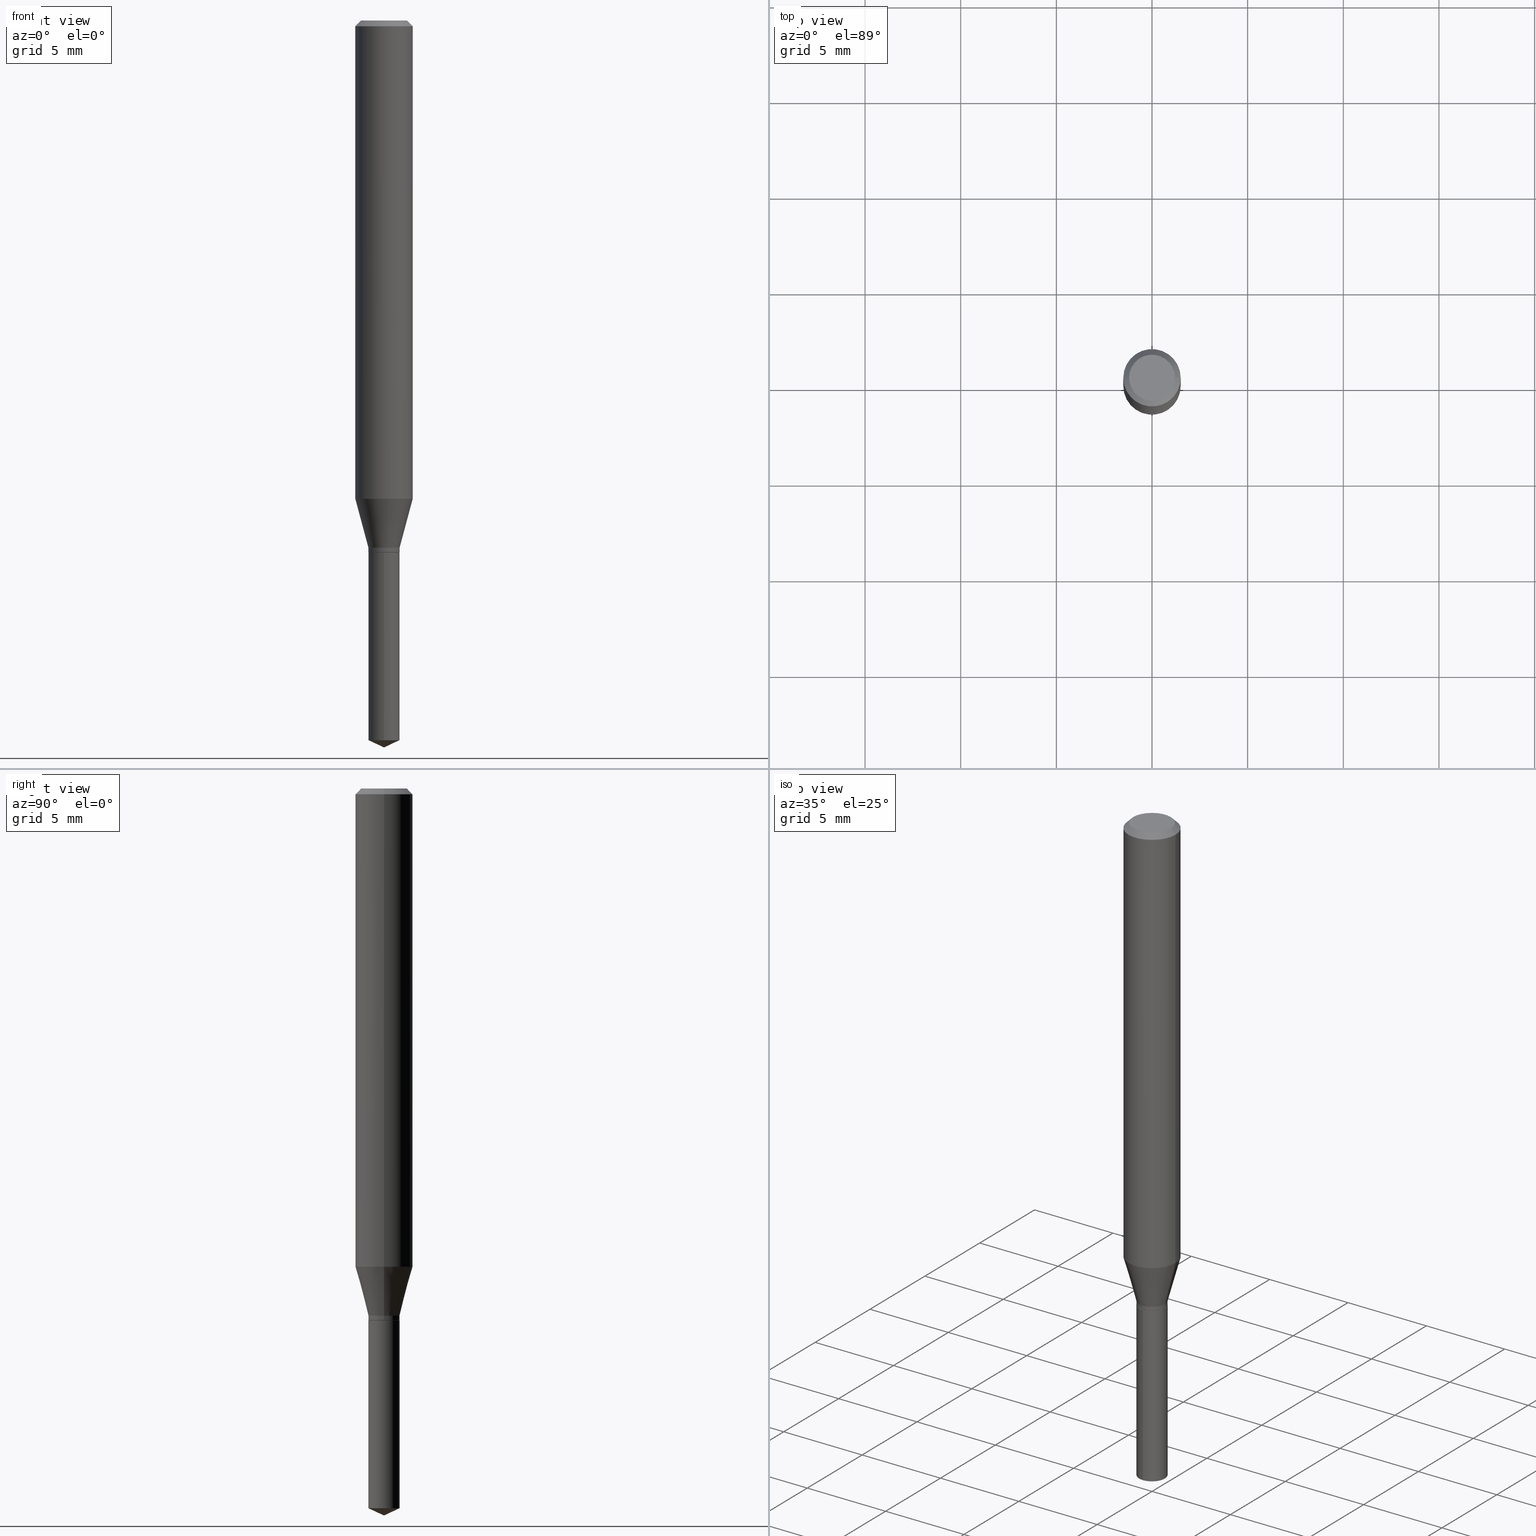
[diagram: canonical four-view strip — front | top / right | iso, engineering-drawing reading convention]
A machine part, canonical four-view strip (front | top / right | iso — engineering-drawing reading convention). The complete STEP part file that produces these views, byte-faithful:
ISO-10303-21;
HEADER;
FILE_DESCRIPTION (( 'STEP AP203' ),
    '1' );
FILE_NAME ('07556.STEP',
    '2024-04-23T22:54:17',
    ( '' ),
    ( '' ),
    'SwSTEP 2.0',
    'SolidWorks 2023',
    '' );
FILE_SCHEMA (( 'CONFIG_CONTROL_DESIGN' ));
ENDSEC;

DATA;
#1 = VERTEX_POINT ( 'NONE', #342 ) ;
#2 = CC_DESIGN_PERSON_AND_ORGANIZATION_ASSIGNMENT ( #412, #376, ( #116 ) ) ;
#3 = EDGE_LOOP ( 'NONE', ( #309, #75, #5 ) ) ;
#4 = CLOSED_SHELL ( 'NONE', ( #286, #91, #335, #417, #340 ) ) ;
#5 = ORIENTED_EDGE ( 'NONE', *, *, #470, .F. ) ;
#6 = CARTESIAN_POINT ( 'NONE',  ( -0.03209999999999998965, -3.575710126423672121E-15, -1.093999999999999861 ) ) ;
#7 = ORIENTED_EDGE ( 'NONE', *, *, #446, .F. ) ;
#8 = ORIENTED_EDGE ( 'NONE', *, *, #246, .F. ) ;
#9 = EDGE_CURVE ( 'NONE', #115, #1, #235, .T. ) ;
#10 = CARTESIAN_POINT ( 'NONE',  ( 3.658668015054778287E-29, -5.223602213574301462E-15, -1.496099999999999985 ) ) ;
#11 = DIRECTION ( 'NONE',  ( -2.445468806185136597E-29, 3.491481338843145583E-15, 1.000000000000000000 ) ) ;
#12 =( CONVERSION_BASED_UNIT ( 'INCH', #88 ) LENGTH_UNIT ( ) NAMED_UNIT ( #17 ) );
#13 = ORIENTED_EDGE ( 'NONE', *, *, #408, .F. ) ;
#14 = DIRECTION ( 'NONE',  ( -2.445468806185136877E-29, 3.491481338843145188E-15, 1.000000000000000000 ) ) ;
#15 = EDGE_CURVE ( 'NONE', #275, #128, #193, .T. ) ;
#16 = ORIENTED_EDGE ( 'NONE', *, *, #224, .T. ) ;
#17 = DIMENSIONAL_EXPONENTS ( 1.000000000000000000, 0.000000000000000000, 0.000000000000000000, 0.000000000000000000, 0.000000000000000000, 0.000000000000000000, 0.000000000000000000 ) ;
#18 = DIRECTION ( 'NONE',  ( -2.445468806185136597E-29, 3.491481338843145583E-15, 1.000000000000000000 ) ) ;
#19 = CALENDAR_DATE ( 2024, 23, 4 ) ;
#20 = CYLINDRICAL_SURFACE ( 'NONE', #142, 0.05905000000000006077 ) ;
#21 = EDGE_CURVE ( 'NONE', #163, #275, #168, .T. ) ;
#22 = UNCERTAINTY_MEASURE_WITH_UNIT (LENGTH_MEASURE( 1.000000000000000082E-05 ), #12, 'distance_accuracy_value', 'NONE');
#23 = VECTOR ( 'NONE', #431, 39.37007874015748854 ) ;
#24 = DIRECTION ( 'NONE',  ( 2.438088387897960049E-29, -3.491481338843145188E-15, -1.000000000000000000 ) ) ;
#25 = MANIFOLD_SOLID_BREP ( 'Body-Move/Copy2[2]', #302 ) ;
#26 = DIRECTION ( 'NONE',  ( 1.000000000000000000, -6.982962677686266711E-15, 4.876176775795935793E-29 ) ) ;
#27 = ORIENTED_EDGE ( 'NONE', *, *, #470, .T. ) ;
#28 = CARTESIAN_POINT ( 'NONE',  ( 2.676565608369631794E-29, -3.821426325363822773E-15, -1.094499999999999806 ) ) ;
#29 = ORIENTED_EDGE ( 'NONE', *, *, #370, .T. ) ;
#30 = EDGE_LOOP ( 'NONE', ( #272, #233, #410, #280 ) ) ;
#31 = AXIS2_PLACEMENT_3D ( 'NONE', #288, #11, #203 ) ;
#32 = LOCAL_TIME ( 18, 54, 17.00000000000000000, #216 ) ;
#33 = PLANE ( 'NONE',  #452 ) ;
#34 = ORIENTED_EDGE ( 'NONE', *, *, #455, .T. ) ;
#35 = ORIENTED_EDGE ( 'NONE', *, *, #321, .F. ) ;
#36 = DIRECTION ( 'NONE',  ( 2.445468806185136597E-29, -3.491481338843145583E-15, -1.000000000000000000 ) ) ;
#37 = ORIENTED_EDGE ( 'NONE', *, *, #388, .F. ) ;
#38 = DIRECTION ( 'NONE',  ( 1.000000000000000000, -6.982962677686265133E-15, 0.000000000000000000 ) ) ;
#39 = DIRECTION ( 'NONE',  ( -2.445468806185136597E-29, 3.491481338843145583E-15, 1.000000000000000000 ) ) ;
#40 = VECTOR ( 'NONE', #160, 39.37007874015748854 ) ;
#41 = CARTESIAN_POINT ( 'NONE',  ( 2.653089107830254266E-29, -3.787908104510928327E-15, -1.084899999999999975 ) ) ;
#42 = EDGE_CURVE ( 'NONE', #448, #166, #296, .T. ) ;
#43 = DIRECTION ( 'NONE',  ( -6.982962677686265133E-15, -1.000000000000000000, 4.255214943402279650E-15 ) ) ;
#44 = ORIENTED_EDGE ( 'NONE', *, *, #21, .T. ) ;
#45 =( GEOMETRIC_REPRESENTATION_CONTEXT ( 3 ) GLOBAL_UNCERTAINTY_ASSIGNED_CONTEXT ( ( #22 ) ) GLOBAL_UNIT_ASSIGNED_CONTEXT ( ( #12, #250, #167 ) ) REPRESENTATION_CONTEXT ( 'NONE', 'WORKASPACE' ) );
#46 = DIRECTION ( 'NONE',  ( -2.445468806185136597E-29, 3.491481338843145583E-15, 1.000000000000000000 ) ) ;
#47 = CC_DESIGN_DATE_AND_TIME_ASSIGNMENT ( #242, #441, ( #307 ) ) ;
#48 = CARTESIAN_POINT ( 'NONE',  ( -0.04724000000000000421, 3.504923541997677355E-16, -3.380025165670481712E-19 ) ) ;
#49 = APPROVAL_DATE_TIME ( #476, #100 ) ;
#50 = ORIENTED_EDGE ( 'NONE', *, *, #144, .T. ) ;
#51 = DIRECTION ( 'NONE',  ( 1.000000000000000000, -6.982962677686265133E-15, 0.000000000000000000 ) ) ;
#52 = PRODUCT ( '07556', '07556', '', ( #445 ) ) ;
#53 = APPROVAL_ROLE ( '' ) ;
#54 = DIRECTION ( 'NONE',  ( -6.982962677686265133E-15, -1.000000000000000000, 4.255214943402279650E-15 ) ) ;
#55 = CARTESIAN_POINT ( 'NONE',  ( 0.05905000000000006077, -4.123439461173744764E-16, 2.879382386107503023E-30 ) ) ;
#56 = DIRECTION ( 'NONE',  ( -2.445470214571802116E-29, 3.491479321953280158E-15, 1.000000000000000000 ) ) ;
#57 = AXIS2_PLACEMENT_3D ( 'NONE', #293, #435, #255 ) ;
#58 = ADVANCED_FACE ( 'NONE', ( #294 ), #325, .T. ) ;
#59 = CARTESIAN_POINT ( 'NONE',  ( 2.280842181790284230E-16, 0.03209999999999617326, -1.094500000000000028 ) ) ;
#60 = FACE_OUTER_BOUND ( 'NONE', #313, .T. ) ;
#61 = CARTESIAN_POINT ( 'NONE',  ( -0.03159999999999999615, -3.596894820863631388E-15, -1.094500000000000028 ) ) ;
#62 = DIRECTION ( 'NONE',  ( 0.000000000000000000, 0.000000000000000000, 1.000000000000000000 ) ) ;
#63 = ORIENTED_EDGE ( 'NONE', *, *, #364, .T. ) ;
#64 = EDGE_CURVE ( 'NONE', #1, #115, #392, .T. ) ;
#65 = CARTESIAN_POINT ( 'NONE',  ( -2.241531019537023721E-16, -0.03210000000000381992, -1.094499999999999806 ) ) ;
#66 = VECTOR ( 'NONE', #378, 39.37007874015748854 ) ;
#67 = ORIENTED_EDGE ( 'NONE', *, *, #321, .T. ) ;
#68 = AXIS2_PLACEMENT_3D ( 'NONE', #320, #124, #118 ) ;
#69 = CYLINDRICAL_SURFACE ( 'NONE', #264, 0.03209999999999999659 ) ;
#70 = AXIS2_PLACEMENT_3D ( 'NONE', #451, #237, #38 ) ;
#71 = EDGE_CURVE ( 'NONE', #130, #115, #79, .T. ) ;
#72 = EDGE_LOOP ( 'NONE', ( #304, #108, #306, #67 ) ) ;
#73 = LINE ( 'NONE', #10, #40 ) ;
#74 = PERSON_AND_ORGANIZATION ( #459, #443 ) ;
#75 = ORIENTED_EDGE ( 'NONE', *, *, #446, .T. ) ;
#76 = DIRECTION ( 'NONE',  ( -2.445468806185136597E-29, 3.491481338843145583E-15, 1.000000000000000000 ) ) ;
#77 = DATE_AND_TIME ( #419, #201 ) ;
#78 = VECTOR ( 'NONE', #129, 39.37007874015748143 ) ;
#79 = LINE ( 'NONE', #145, #66 ) ;
#80 = FACE_OUTER_BOUND ( 'NONE', #3, .T. ) ;
#81 = ADVANCED_FACE ( 'NONE', ( #274 ), #161, .T. ) ;
#82 = EDGE_LOOP ( 'NONE', ( #123, #359, #13, #134 ) ) ;
#83 = CALENDAR_DATE ( 2024, 23, 4 ) ;
#84 = AXIS2_PLACEMENT_3D ( 'NONE', #481, #18, #173 ) ;
#85 = VECTOR ( 'NONE', #14, 39.37007874015748143 ) ;
#86 = AXIS2_PLACEMENT_3D ( 'NONE', #41, #39, #267 ) ;
#87 = LINE ( 'NONE', #468, #442 ) ;
#88 = LENGTH_MEASURE_WITH_UNIT ( LENGTH_MEASURE( 0.02539999999999999897 ), #164 );
#89 = DIRECTION ( 'NONE',  ( -6.982962677686265133E-15, -1.000000000000000000, 4.255214943402279650E-15 ) ) ;
#90 = CARTESIAN_POINT ( 'NONE',  ( 3.658664905062460986E-29, -5.223606628546217219E-15, -1.496099999999999985 ) ) ;
#91 = ADVANCED_FACE ( 'NONE', ( #80 ), #338, .T. ) ;
#92 = CARTESIAN_POINT ( 'NONE',  ( 2.653089107830254266E-29, -3.787908104510928327E-15, -1.084899999999999975 ) ) ;
#93 = LINE ( 'NONE', #214, #147 ) ;
#94 = DIRECTION ( 'NONE',  ( -2.445468806185136597E-29, 3.491481338843145583E-15, 1.000000000000000000 ) ) ;
#95 = ORIENTED_EDGE ( 'NONE', *, *, #246, .T. ) ;
#96 = CARTESIAN_POINT ( 'NONE',  ( 2.888098660104664204E-31, -4.123439461173780263E-17, -0.01181000000000007218 ) ) ;
#97 = VECTOR ( 'NONE', #248, 39.37007874015748143 ) ;
#98 = VERTEX_POINT ( 'NONE', #355 ) ;
#99 = DIRECTION ( 'NONE',  ( -1.000000000000000000, 6.982962677686265922E-15, -4.876176775795935793E-29 ) ) ;
#100 = APPROVAL ( #197, 'UNSPECIFIED' ) ;
#101 = DIRECTION ( 'NONE',  ( 2.445470214571801836E-29, -3.491479321953280158E-15, -1.000000000000000000 ) ) ;
#102 = PERSON_AND_ORGANIZATION ( #459, #443 ) ;
#103 = EDGE_LOOP ( 'NONE', ( #429, #154 ) ) ;
#104 = VERTEX_POINT ( 'NONE', #315 ) ;
#105 = ADVANCED_FACE ( 'NONE', ( #423 ), #33, .F. ) ;
#106 = ORIENTED_EDGE ( 'NONE', *, *, #487, .T. ) ;
#107 = DIRECTION ( 'NONE',  ( 1.000000000000000000, -6.982962677686266711E-15, 4.876185090822587894E-29 ) ) ;
#108 = ORIENTED_EDGE ( 'NONE', *, *, #425, .F. ) ;
#109 = EDGE_LOOP ( 'NONE', ( #416, #322, #50, #479 ) ) ;
#110 = DIRECTION ( 'NONE',  ( 1.000000000000000000, -6.982962677686266711E-15, 0.000000000000000000 ) ) ;
#111 = COORDINATED_UNIVERSAL_TIME_OFFSET ( 5, 0, .BEHIND. ) ;
#112 = APPLICATION_CONTEXT ( 'configuration controlled 3d designs of mechanical parts and assemblies' ) ;
#113 = EDGE_LOOP ( 'NONE', ( #27, #63, #291, #460 ) ) ;
#114 = DIRECTION ( 'NONE',  ( -2.445470214571802116E-29, 3.491479321953280158E-15, 1.000000000000000000 ) ) ;
#115 = VERTEX_POINT ( 'NONE', #463 ) ;
#116 = PRODUCT_DEFINITION_FORMATION_WITH_SPECIFIED_SOURCE ( 'ANY', '', #52, .NOT_KNOWN. ) ;
#117 = PERSON_AND_ORGANIZATION ( #459, #443 ) ;
#118 = DIRECTION ( 'NONE',  ( -6.982962677686265133E-15, -1.000000000000000000, 0.000000000000000000 ) ) ;
#119 = ORIENTED_EDGE ( 'NONE', *, *, #349, .F. ) ;
#120 = CARTESIAN_POINT ( 'NONE',  ( -2.241531019537023721E-16, -0.03210000000000381992, -1.094499999999999806 ) ) ;
#121 = CC_DESIGN_SECURITY_CLASSIFICATION ( #225, ( #116 ) ) ;
#122 = EDGE_CURVE ( 'NONE', #166, #414, #87, .T. ) ;
#123 = ORIENTED_EDGE ( 'NONE', *, *, #388, .T. ) ;
#124 = DIRECTION ( 'NONE',  ( -2.445470214571802116E-29, 3.491479321953280158E-15, 1.000000000000000000 ) ) ;
#125 = AXIS2_PLACEMENT_3D ( 'NONE', #456, #151, #110 ) ;
#126 = AXIS2_PLACEMENT_3D ( 'NONE', #175, #215, #51 ) ;
#127 = CIRCLE ( 'NONE', #297, 0.03159999999999999615 ) ;
#128 = VERTEX_POINT ( 'NONE', #120 ) ;
#129 = DIRECTION ( 'NONE',  ( -2.445468806185136877E-29, 3.491481338843145188E-15, 1.000000000000000000 ) ) ;
#130 = VERTEX_POINT ( 'NONE', #357 ) ;
#131 = EDGE_CURVE ( 'NONE', #98, #130, #243, .T. ) ;
#132 = DIRECTION ( 'NONE',  ( -2.445468806185136597E-29, 3.491481338843145583E-15, 1.000000000000000000 ) ) ;
#133 = CARTESIAN_POINT ( 'NONE',  ( -0.03159999999999999615, -3.594245593689520187E-15, -1.094500000000000028 ) ) ;
#134 = ORIENTED_EDGE ( 'NONE', *, *, #169, .F. ) ;
#135 = CARTESIAN_POINT ( 'NONE',  ( 2.676565608369631794E-29, -3.821426325363822773E-15, -1.094499999999999806 ) ) ;
#136 = LINE ( 'NONE', #172, #97 ) ;
#137 = AXIS2_PLACEMENT_3D ( 'NONE', #312, #238, #381 ) ;
#138 = DIRECTION ( 'NONE',  ( -2.445468806185136597E-29, 3.491481338843145583E-15, 1.000000000000000000 ) ) ;
#139 = EDGE_CURVE ( 'NONE', #448, #426, #319, .T. ) ;
#140 = CARTESIAN_POINT ( 'NONE',  ( 0.000000000000000000, 0.000000000000000000, 0.000000000000000000 ) ) ;
#141 = DIRECTION ( 'NONE',  ( 1.000000000000000000, -6.982962677686266711E-15, 4.876176775795935793E-29 ) ) ;
#142 = AXIS2_PLACEMENT_3D ( 'NONE', #221, #474, #26 ) ;
#143 = AXIS2_PLACEMENT_3D ( 'NONE', #28, #101, #444 ) ;
#144 = EDGE_CURVE ( 'NONE', #426, #414, #220, .T. ) ;
#145 = CARTESIAN_POINT ( 'NONE',  ( 0.03209999999999999659, -4.012061206464657274E-15, -1.084899999999999975 ) ) ;
#146 = EDGE_LOOP ( 'NONE', ( #324, #353, #229, #473 ) ) ;
#147 = VECTOR ( 'NONE', #258, 39.37007874015748854 ) ;
#148 = AXIS2_PLACEMENT_3D ( 'NONE', #217, #138, #252 ) ;
#149 = EDGE_LOOP ( 'NONE', ( #223, #276, #439, #192 ) ) ;
#150 = VECTOR ( 'NONE', #323, 39.37007874015748143 ) ;
#151 = DIRECTION ( 'NONE',  ( -2.445468806185136597E-29, 3.491481338843145583E-15, 1.000000000000000000 ) ) ;
#152 = PERSON_AND_ORGANIZATION ( #459, #443 ) ;
#153 = CC_DESIGN_PERSON_AND_ORGANIZATION_ASSIGNMENT ( #117, #372, ( #307 ) ) ;
#154 = ORIENTED_EDGE ( 'NONE', *, *, #455, .F. ) ;
#155 = CARTESIAN_POINT ( 'NONE',  ( 2.676565608369632355E-29, -3.821426325363822773E-15, -1.094500000000000028 ) ) ;
#156 = FACE_OUTER_BOUND ( 'NONE', #384, .T. ) ;
#157 = ORIENTED_EDGE ( 'NONE', *, *, #64, .T. ) ;
#158 = LOCAL_TIME ( 18, 54, 17.00000000000000000, #333 ) ;
#159 = ORIENTED_EDGE ( 'NONE', *, *, #364, .F. ) ;
#160 = DIRECTION ( 'NONE',  ( 6.439704144417024831E-15, 0.9063077870366516020, 0.4226182617406960551 ) ) ;
#161 = CONICAL_SURFACE ( 'NONE', #385, 0.05904999999999999832, 0.7853981633974452814 ) ;
#162 = CC_DESIGN_PERSON_AND_ORGANIZATION_ASSIGNMENT ( #477, #406, ( #52 ) ) ;
#163 = VERTEX_POINT ( 'NONE', #361 ) ;
#164 =( LENGTH_UNIT ( ) NAMED_UNIT ( * ) SI_UNIT ( $, .METRE. ) );
#165 = CC_DESIGN_APPROVAL ( #100, ( #225 ) ) ;
#166 = VERTEX_POINT ( 'NONE', #48 ) ;
#167 =( NAMED_UNIT ( * ) SI_UNIT ( $, .STERADIAN. ) SOLID_ANGLE_UNIT ( ) );
#168 = CIRCLE ( 'NONE', #317, 0.03209999999999999659 ) ;
#169 = EDGE_CURVE ( 'NONE', #104, #130, #326, .T. ) ;
#170 = CYLINDRICAL_SURFACE ( 'NONE', #148, 0.05905000000000006077 ) ;
#171 = CARTESIAN_POINT ( 'NONE',  ( 0.03159999999999999615, -4.042087945978708713E-15, -1.094500000000000028 ) ) ;
#172 = CARTESIAN_POINT ( 'NONE',  ( 0.03159999999999999615, -4.042087945978708713E-15, -1.094500000000000028 ) ) ;
#173 = DIRECTION ( 'NONE',  ( 1.000000000000000000, -6.982962677686266711E-15, 4.876176775795935793E-29 ) ) ;
#174 = DATE_AND_TIME ( #19, #32 ) ;
#175 = CARTESIAN_POINT ( 'NONE',  ( 2.675342873966538993E-29, -3.819680584694400481E-15, -1.093999999999999861 ) ) ;
#176 = ADVANCED_FACE ( 'NONE', ( #292 ), #20, .T. ) ;
#177 = VECTOR ( 'NONE', #181, 39.37007874015748143 ) ;
#178 = CARTESIAN_POINT ( 'NONE',  ( 2.676565608369631794E-29, -3.821426325363822773E-15, -1.094499999999999806 ) ) ;
#179 = CARTESIAN_POINT ( 'NONE',  ( 4.132873053354867254E-48, -5.900647395337818946E-34, -1.690012582823346072E-19 ) ) ;
#180 = CARTESIAN_POINT ( 'NONE',  ( 2.676565608369631794E-29, -3.821426325363822773E-15, -1.094499999999999806 ) ) ;
#181 = DIRECTION ( 'NONE',  ( -2.445470214571802396E-29, 3.491479321953280158E-15, 1.000000000000000000 ) ) ;
#182 = APPROVAL_STATUS ( 'not_yet_approved' ) ;
#183 = CONICAL_SURFACE ( 'NONE', #380, 0.03209999999999999659, 0.2617993877991498519 ) ;
#184 = AXIS2_PLACEMENT_3D ( 'NONE', #140, #94, #141 ) ;
#185 = LOCAL_TIME ( 18, 54, 17.00000000000000000, #239 ) ;
#186 = ADVANCED_FACE ( 'NONE', ( #393 ), #434, .F. ) ;
#187 = AXIS2_PLACEMENT_3D ( 'NONE', #351, #76, #418 ) ;
#188 = VERTEX_POINT ( 'NONE', #59 ) ;
#189 = ORIENTED_EDGE ( 'NONE', *, *, #283, .F. ) ;
#190 = CALENDAR_DATE ( 2024, 23, 4 ) ;
#191 = DIRECTION ( 'NONE',  ( 1.000000000000000000, -6.982962677686265922E-15, 4.876176775795935793E-29 ) ) ;
#192 = ORIENTED_EDGE ( 'NONE', *, *, #71, .F. ) ;
#193 = LINE ( 'NONE', #65, #177 ) ;
#194 = CC_DESIGN_PERSON_AND_ORGANIZATION_ASSIGNMENT ( #74, #232, ( #116 ) ) ;
#195 = SECURITY_CLASSIFICATION_LEVEL ( 'unclassified' ) ;
#196 = AXIS2_PLACEMENT_3D ( 'NONE', #178, #339, #483 ) ;
#197 = APPROVAL_STATUS ( 'not_yet_approved' ) ;
#198 = DIRECTION ( 'NONE',  ( 1.000000000000000000, -6.982962677686263555E-15, 0.000000000000000000 ) ) ;
#199 = CARTESIAN_POINT ( 'NONE',  ( -0.05904999999999999832, -1.319411316110491759E-15, -0.01181000000000007218 ) ) ;
#200 = PRODUCT_DEFINITION_SHAPE ( 'NONE', 'NONE',  #307 ) ;
#201 = LOCAL_TIME ( 18, 54, 17.00000000000000000, #111 ) ;
#202 = ADVANCED_FACE ( 'NONE', ( #257 ), #210, .T. ) ;
#203 = DIRECTION ( 'NONE',  ( 1.000000000000000000, -6.982962677686263555E-15, 0.000000000000000000 ) ) ;
#204 = DIRECTION ( 'NONE',  ( -2.445468806185136597E-29, 3.491481338843145583E-15, 1.000000000000000000 ) ) ;
#205 = PRODUCT_RELATED_PRODUCT_CATEGORY ( 'detail', '', ( #52 ) ) ;
#206 = CONICAL_SURFACE ( 'NONE', #489, 0.03159999999999999615, 0.7853981633972733079 ) ;
#207 = SHAPE_DEFINITION_REPRESENTATION ( #200, #401 ) ;
#208 = APPLICATION_CONTEXT ( 'configuration controlled 3d designs of mechanical parts and assemblies' ) ;
#209 = ORIENTED_EDGE ( 'NONE', *, *, #386, .T. ) ;
#210 = CYLINDRICAL_SURFACE ( 'NONE', #184, 0.03209999999999999659 ) ;
#211 = LINE ( 'NONE', #55, #85 ) ;
#212 = AXIS2_PLACEMENT_3D ( 'NONE', #135, #262, #54 ) ;
#213 = APPROVAL_PERSON_ORGANIZATION ( #102, #219, #53 ) ;
#214 = CARTESIAN_POINT ( 'NONE',  ( -0.03209999999999999659, -3.559823886331936833E-15, -1.084899999999999975 ) ) ;
#215 = DIRECTION ( 'NONE',  ( -2.445468806185136597E-29, 3.491481338843145583E-15, 1.000000000000000000 ) ) ;
#216 = COORDINATED_UNIVERSAL_TIME_OFFSET ( 5, 0, .BEHIND. ) ;
#217 = CARTESIAN_POINT ( 'NONE',  ( 0.000000000000000000, 0.000000000000000000, 0.000000000000000000 ) ) ;
#218 = CYLINDRICAL_SURFACE ( 'NONE', #196, 0.03209999999999999659 ) ;
#219 = APPROVAL ( #391, 'UNSPECIFIED' ) ;
#220 = CIRCLE ( 'NONE', #263, 0.05904999999999999832 ) ;
#221 = CARTESIAN_POINT ( 'NONE',  ( 0.000000000000000000, 0.000000000000000000, 0.000000000000000000 ) ) ;
#222 = ORIENTED_EDGE ( 'NONE', *, *, #349, .T. ) ;
#223 = ORIENTED_EDGE ( 'NONE', *, *, #408, .T. ) ;
#224 = EDGE_CURVE ( 'NONE', #266, #275, #398, .T. ) ;
#225 = SECURITY_CLASSIFICATION ( '', '', #195 ) ;
#226 = CIRCLE ( 'NONE', #70, 0.03209999999999998965 ) ;
#227 = ORIENTED_EDGE ( 'NONE', *, *, #370, .F. ) ;
#228 = FACE_OUTER_BOUND ( 'NONE', #149, .T. ) ;
#229 = ORIENTED_EDGE ( 'NONE', *, *, #71, .T. ) ;
#230 = EDGE_CURVE ( 'NONE', #128, #188, #461, .T. ) ;
#231 = VECTOR ( 'NONE', #332, 39.37007874015748143 ) ;
#232 = PERSON_AND_ORGANIZATION_ROLE ( 'creator' ) ;
#233 = ORIENTED_EDGE ( 'NONE', *, *, #354, .T. ) ;
#234 = DIRECTION ( 'NONE',  ( 1.000000000000000000, -6.982962677686263555E-15, 0.000000000000000000 ) ) ;
#235 = CIRCLE ( 'NONE', #369, 0.05905000000000011628 ) ;
#236 = ORIENTED_EDGE ( 'NONE', *, *, #425, .T. ) ;
#237 = DIRECTION ( 'NONE',  ( -2.445468806185136597E-29, 3.491481338843145583E-15, 1.000000000000000000 ) ) ;
#238 = DIRECTION ( 'NONE',  ( -2.445470214571802116E-29, 3.491479321953280158E-15, 1.000000000000000000 ) ) ;
#239 = COORDINATED_UNIVERSAL_TIME_OFFSET ( 5, 0, .BEHIND. ) ;
#240 = VECTOR ( 'NONE', #478, 39.37007874015748143 ) ;
#241 = ADVANCED_FACE ( 'NONE', ( #362 ), #170, .T. ) ;
#242 = DATE_AND_TIME ( #83, #343 ) ;
#243 = CIRCLE ( 'NONE', #31, 0.03209999999999999659 ) ;
#244 = DIRECTION ( 'NONE',  ( 1.000000000000000000, -6.982962677686266711E-15, 0.000000000000000000 ) ) ;
#245 = FACE_OUTER_BOUND ( 'NONE', #72, .T. ) ;
#246 = EDGE_CURVE ( 'NONE', #382, #104, #403, .T. ) ;
#247 = APPROVAL_ROLE ( '' ) ;
#248 = DIRECTION ( 'NONE',  ( 0.7071067811864237829, -2.468850131080960568E-15, 0.7071067811866712516 ) ) ;
#249 = APPROVAL_ROLE ( '' ) ;
#250 =( NAMED_UNIT ( * ) PLANE_ANGLE_UNIT ( ) SI_UNIT ( $, .RADIAN. ) );
#251 = LINE ( 'NONE', #345, #231 ) ;
#252 = DIRECTION ( 'NONE',  ( 1.000000000000000000, -6.982962677686266711E-15, 4.876176775795935793E-29 ) ) ;
#253 = CARTESIAN_POINT ( 'NONE',  ( 2.888098660104664204E-31, -4.123439461173780263E-17, -0.01181000000000007218 ) ) ;
#254 = CONICAL_SURFACE ( 'NONE', #428, 0.03159999999999999615, 0.7853981633972733079 ) ;
#255 = DIRECTION ( 'NONE',  ( -6.982962677686267499E-15, -1.000000000000000000, 3.520397390770466886E-15 ) ) ;
#256 = CIRCLE ( 'NONE', #271, 0.04724000000000000421 ) ;
#257 = FACE_OUTER_BOUND ( 'NONE', #422, .T. ) ;
#258 = DIRECTION ( 'NONE',  ( -0.2588190451025211281, 5.211531920934547886E-15, 0.9659258262890679791 ) ) ;
#259 = CALENDAR_DATE ( 2024, 23, 4 ) ;
#260 = ADVANCED_FACE ( 'NONE', ( #365 ), #368, .T. ) ;
#261 = FACE_OUTER_BOUND ( 'NONE', #113, .T. ) ;
#262 = DIRECTION ( 'NONE',  ( -2.445470214571802116E-29, 3.491479321953280158E-15, 1.000000000000000000 ) ) ;
#263 = AXIS2_PLACEMENT_3D ( 'NONE', #427, #46, #244 ) ;
#264 = AXIS2_PLACEMENT_3D ( 'NONE', #311, #114, #43 ) ;
#265 = PERSON_AND_ORGANIZATION ( #459, #443 ) ;
#266 = VERTEX_POINT ( 'NONE', #337 ) ;
#267 = DIRECTION ( 'NONE',  ( 1.000000000000000000, -6.982962677686263555E-15, 0.000000000000000000 ) ) ;
#268 = DIRECTION ( 'NONE',  ( 1.000000000000000000, -6.982962677686263555E-15, 0.000000000000000000 ) ) ;
#269 = AXIS2_PLACEMENT_3D ( 'NONE', #92, #421, #198 ) ;
#270 = APPROVAL ( #182, 'UNSPECIFIED' ) ;
#271 = AXIS2_PLACEMENT_3D ( 'NONE', #281, #383, #107 ) ;
#272 = ORIENTED_EDGE ( 'NONE', *, *, #9, .T. ) ;
#273 = CARTESIAN_POINT ( 'NONE',  ( 0.05904999999999999832, -4.535783407291118600E-16, -0.01181000000000007218 ) ) ;
#274 = FACE_OUTER_BOUND ( 'NONE', #109, .T. ) ;
#275 = VERTEX_POINT ( 'NONE', #299 ) ;
#276 = ORIENTED_EDGE ( 'NONE', *, *, #373, .T. ) ;
#277 = DIRECTION ( 'NONE',  ( -1.000000000000000000, 6.982962677686266711E-15, 0.000000000000000000 ) ) ;
#278 = VECTOR ( 'NONE', #396, 39.37007874015748143 ) ;
#279 = CC_DESIGN_APPROVAL ( #219, ( #307 ) ) ;
#280 = ORIENTED_EDGE ( 'NONE', *, *, #487, .F. ) ;
#281 = CARTESIAN_POINT ( 'NONE',  ( 8.265746106709734507E-48, -1.180129479067563789E-33, -3.380025165646692144E-19 ) ) ;
#282 = CARTESIAN_POINT ( 'NONE',  ( 2.888098660104664204E-31, -4.123439461173780263E-17, -0.01181000000000007218 ) ) ;
#283 = EDGE_CURVE ( 'NONE', #374, #382, #295, .T. ) ;
#284 = LINE ( 'NONE', #472, #150 ) ;
#285 = DIRECTION ( 'NONE',  ( 0.7071067811865453523, -7.319954787623248157E-15, -0.7071067811865496822 ) ) ;
#286 = ADVANCED_FACE ( 'NONE', ( #261 ), #218, .T. ) ;
#287 = ORIENTED_EDGE ( 'NONE', *, *, #21, .F. ) ;
#288 = CARTESIAN_POINT ( 'NONE',  ( 2.653089107830254266E-29, -3.787908104510928327E-15, -1.084899999999999975 ) ) ;
#289 = DIRECTION ( 'NONE',  ( -1.000000000000000000, 6.982962677686266711E-15, 0.000000000000000000 ) ) ;
#290 = AXIS2_PLACEMENT_3D ( 'NONE', #96, #132, #400 ) ;
#291 = ORIENTED_EDGE ( 'NONE', *, *, #230, .F. ) ;
#292 = FACE_OUTER_BOUND ( 'NONE', #330, .T. ) ;
#293 = CARTESIAN_POINT ( 'NONE',  ( -9.261968845786000133E-28, 1.322362114038720264E-13, 37.87397874015748300 ) ) ;
#294 = FACE_OUTER_BOUND ( 'NONE', #146, .T. ) ;
#295 = LINE ( 'NONE', #61, #278 ) ;
#296 = CIRCLE ( 'NONE', #488, 0.04724000000000000421 ) ;
#297 = AXIS2_PLACEMENT_3D ( 'NONE', #432, #204, #430 ) ;
#298 = ADVANCED_FACE ( 'NONE', ( #440 ), #254, .T. ) ;
#299 = CARTESIAN_POINT ( 'NONE',  ( -2.241531019536929551E-16, -0.03210000000000517301, -1.481131524173224578 ) ) ;
#300 = CC_DESIGN_DATE_AND_TIME_ASSIGNMENT ( #77, #329, ( #225 ) ) ;
#301 = PLANE ( 'NONE',  #143 ) ;
#302 = CLOSED_SHELL ( 'NONE', ( #379, #81, #241, #314, #260, #202, #58, #176, #482, #186, #105, #298 ) ) ;
#303 = AXIS2_PLACEMENT_3D ( 'NONE', #253, #360, #289 ) ;
#304 = ORIENTED_EDGE ( 'NONE', *, *, #139, .F. ) ;
#305 = CARTESIAN_POINT ( 'NONE',  ( 2.407126865030695600E-29, -3.436739208541926354E-15, -0.9843212307360184044 ) ) ;
#306 = ORIENTED_EDGE ( 'NONE', *, *, #122, .T. ) ;
#307 = PRODUCT_DEFINITION ( 'UNKNOWN', '', #116, #407 ) ;
#308 = DATE_AND_TIME ( #190, #185 ) ;
#309 = ORIENTED_EDGE ( 'NONE', *, *, #224, .F. ) ;
#310 = ORIENTED_EDGE ( 'NONE', *, *, #230, .T. ) ;
#311 = CARTESIAN_POINT ( 'NONE',  ( 2.676565608369631794E-29, -3.821426325363822773E-15, -1.094499999999999806 ) ) ;
#312 = CARTESIAN_POINT ( 'NONE',  ( -9.261968845786000133E-28, 1.322362114038720264E-13, 37.87397874015748300 ) ) ;
#313 = EDGE_LOOP ( 'NONE', ( #209, #450, #37, #227 ) ) ;
#314 = ADVANCED_FACE ( 'NONE', ( #228 ), #183, .T. ) ;
#315 = CARTESIAN_POINT ( 'NONE',  ( 0.03209999999999998965, -4.043833686648129428E-15, -1.093999999999999861 ) ) ;
#316 = CC_DESIGN_APPROVAL ( #270, ( #116 ) ) ;
#317 = AXIS2_PLACEMENT_3D ( 'NONE', #341, #485, #390 ) ;
#318 = CARTESIAN_POINT ( 'NONE',  ( 8.265746106709734507E-48, -1.180129479067563789E-33, -3.380025165646692144E-19 ) ) ;
#319 = LINE ( 'NONE', #465, #411 ) ;
#320 = CARTESIAN_POINT ( 'NONE',  ( 3.622061484749750014E-29, -5.171342297229916227E-15, -1.481131524173224578 ) ) ;
#321 = EDGE_CURVE ( 'NONE', #414, #426, #328, .T. ) ;
#322 = ORIENTED_EDGE ( 'NONE', *, *, #139, .T. ) ;
#323 = DIRECTION ( 'NONE',  ( -2.445468806185136877E-29, 3.491481338843145188E-15, 1.000000000000000000 ) ) ;
#324 = ORIENTED_EDGE ( 'NONE', *, *, #373, .F. ) ;
#325 = CONICAL_SURFACE ( 'NONE', #269, 0.03209999999999999659, 0.2617993877991498519 ) ;
#326 = LINE ( 'NONE', #471, #78 ) ;
#327 = CONICAL_SURFACE ( 'NONE', #303, 0.05904999999999999832, 0.7853981633974452814 ) ;
#328 = CIRCLE ( 'NONE', #290, 0.05904999999999999832 ) ;
#329 = DATE_TIME_ROLE ( 'classification_date' ) ;
#330 = EDGE_LOOP ( 'NONE', ( #377, #157, #106, #35 ) ) ;
#331 = DIRECTION ( 'NONE',  ( -2.445468806185136597E-29, 3.491481338843145583E-15, 1.000000000000000000 ) ) ;
#332 = DIRECTION ( 'NONE',  ( -2.445468806185136877E-29, 3.491481338843145188E-15, 1.000000000000000000 ) ) ;
#333 = COORDINATED_UNIVERSAL_TIME_OFFSET ( 5, 0, .BEHIND. ) ;
#334 = DIRECTION ( 'NONE',  ( 1.000000000000000000, 0.000000000000000000, 0.000000000000000000 ) ) ;
#335 = ADVANCED_FACE ( 'NONE', ( #484 ), #347, .T. ) ;
#336 = CARTESIAN_POINT ( 'NONE',  ( 2.280842181790188581E-16, 0.03209999999999617326, -1.094500000000000028 ) ) ;
#337 = CARTESIAN_POINT ( 'NONE',  ( 3.658667988020872822E-29, -5.223602213574301462E-15, -1.496099999999999985 ) ) ;
#338 = CONICAL_SURFACE ( 'NONE', #137, 84.42940631927402251, 1.134464013796314452 ) ;
#339 = DIRECTION ( 'NONE',  ( -2.445470214571802116E-29, 3.491479321953280158E-15, 1.000000000000000000 ) ) ;
#340 = ADVANCED_FACE ( 'NONE', ( #395 ), #301, .F. ) ;
#341 = CARTESIAN_POINT ( 'NONE',  ( 3.622061484749750014E-29, -5.171342297229916227E-15, -1.481131524173224578 ) ) ;
#342 = CARTESIAN_POINT ( 'NONE',  ( -0.05905000000000011628, -3.017163723075586861E-15, -0.9843212307360184044 ) ) ;
#343 = LOCAL_TIME ( 18, 54, 17.00000000000000000, #433 ) ;
#344 = EDGE_LOOP ( 'NONE', ( #7, #16, #287 ) ) ;
#345 = CARTESIAN_POINT ( 'NONE',  ( -0.05905000000000006077, 4.195754854663395916E-16, -2.904631170795524694E-30 ) ) ;
#346 = CARTESIAN_POINT ( 'NONE',  ( -6.270913029850894293E-30, -8.552451054897899480E-15, -1.094500000000000028 ) ) ;
#347 = CONICAL_SURFACE ( 'NONE', #57, 84.42940631927402251, 1.134464013796314452 ) ;
#348 = MANIFOLD_SOLID_BREP ( 'Body-Move/Copy2[1]', #4 ) ;
#349 = EDGE_CURVE ( 'NONE', #188, #128, #366, .T. ) ;
#350 = ORIENTED_EDGE ( 'NONE', *, *, #15, .T. ) ;
#351 = CARTESIAN_POINT ( 'NONE',  ( 2.676565608369632355E-29, -3.821426325363822773E-15, -1.094500000000000028 ) ) ;
#352 = AXIS2_PLACEMENT_3D ( 'NONE', #179, #24, #99 ) ;
#353 = ORIENTED_EDGE ( 'NONE', *, *, #131, .T. ) ;
#354 = EDGE_CURVE ( 'NONE', #1, #414, #251, .T. ) ;
#355 = CARTESIAN_POINT ( 'NONE',  ( -0.03209999999999999659, -3.575710126423672121E-15, -1.084899999999999975 ) ) ;
#356 = APPROVAL_PERSON_ORGANIZATION ( #358, #100, #249 ) ;
#357 = CARTESIAN_POINT ( 'NONE',  ( 0.03209999999999999659, -4.012061206464657274E-15, -1.084899999999999975 ) ) ;
#358 = PERSON_AND_ORGANIZATION ( #459, #443 ) ;
#359 = ORIENTED_EDGE ( 'NONE', *, *, #464, .T. ) ;
#360 = DIRECTION ( 'NONE',  ( 2.445468806185136597E-29, -3.491481338843145583E-15, -1.000000000000000000 ) ) ;
#361 = CARTESIAN_POINT ( 'NONE',  ( 2.280842181790283737E-16, 0.03209999999999482712, -1.481131524173224578 ) ) ;
#362 = FACE_OUTER_BOUND ( 'NONE', #30, .T. ) ;
#363 = AXIS2_PLACEMENT_3D ( 'NONE', #402, #62, #334 ) ;
#364 = EDGE_CURVE ( 'NONE', #163, #188, #490, .T. ) ;
#365 = FACE_OUTER_BOUND ( 'NONE', #82, .T. ) ;
#366 = CIRCLE ( 'NONE', #438, 0.03209999999999999659 ) ;
#367 = EDGE_LOOP ( 'NONE', ( #310, #222 ) ) ;
#368 = CYLINDRICAL_SURFACE ( 'NONE', #84, 0.03209999999999999659 ) ;
#369 = AXIS2_PLACEMENT_3D ( 'NONE', #305, #405, #415 ) ;
#370 = EDGE_CURVE ( 'NONE', #458, #104, #136, .T. ) ;
#371 = CIRCLE ( 'NONE', #68, 0.03209999999999999659 ) ;
#372 = PERSON_AND_ORGANIZATION_ROLE ( 'creator' ) ;
#373 = EDGE_CURVE ( 'NONE', #98, #1, #93, .T. ) ;
#374 = VERTEX_POINT ( 'NONE', #133 ) ;
#375 = ORIENTED_EDGE ( 'NONE', *, *, #169, .T. ) ;
#376 = PERSON_AND_ORGANIZATION_ROLE ( 'design_supplier' ) ;
#377 = ORIENTED_EDGE ( 'NONE', *, *, #354, .F. ) ;
#378 = DIRECTION ( 'NONE',  ( 0.2588190451025211281, 1.565188264969622954E-15, 0.9659258262890679791 ) ) ;
#379 = ADVANCED_FACE ( 'NONE', ( #60 ), #206, .T. ) ;
#380 = AXIS2_PLACEMENT_3D ( 'NONE', #397, #331, #475 ) ;
#381 = DIRECTION ( 'NONE',  ( -6.982962677686267499E-15, -1.000000000000000000, 3.520397390770466886E-15 ) ) ;
#382 = VERTEX_POINT ( 'NONE', #6 ) ;
#383 = DIRECTION ( 'NONE',  ( -2.445468806185136597E-29, 3.491481338843145583E-15, 1.000000000000000000 ) ) ;
#384 = EDGE_LOOP ( 'NONE', ( #159, #44, #350, #119 ) ) ;
#385 = AXIS2_PLACEMENT_3D ( 'NONE', #282, #36, #277 ) ;
#386 = EDGE_CURVE ( 'NONE', #458, #374, #454, .T. ) ;
#387 = CARTESIAN_POINT ( 'NONE',  ( 2.676565608369632355E-29, -3.821426325363822773E-15, -1.094500000000000028 ) ) ;
#388 = EDGE_CURVE ( 'NONE', #104, #382, #226, .T. ) ;
#389 = EDGE_LOOP ( 'NONE', ( #236, #420 ) ) ;
#390 = DIRECTION ( 'NONE',  ( -6.982962677686265133E-15, -1.000000000000000000, 0.000000000000000000 ) ) ;
#391 = APPROVAL_STATUS ( 'not_yet_approved' ) ;
#392 = CIRCLE ( 'NONE', #125, 0.05905000000000011628 ) ;
#393 = FACE_OUTER_BOUND ( 'NONE', #389, .T. ) ;
#394 = APPROVAL_PERSON_ORGANIZATION ( #265, #270, #247 ) ;
#395 = FACE_OUTER_BOUND ( 'NONE', #367, .T. ) ;
#396 = DIRECTION ( 'NONE',  ( -0.7071067811864237829, 7.493145998869907665E-15, 0.7071067811866712516 ) ) ;
#397 = CARTESIAN_POINT ( 'NONE',  ( 2.653089107830254266E-29, -3.787908104510928327E-15, -1.084899999999999975 ) ) ;
#398 = LINE ( 'NONE', #90, #23 ) ;
#399 = CC_DESIGN_PERSON_AND_ORGANIZATION_ASSIGNMENT ( #152, #457, ( #225 ) ) ;
#400 = DIRECTION ( 'NONE',  ( 1.000000000000000000, -6.982962677686266711E-15, 0.000000000000000000 ) ) ;
#401 = ADVANCED_BREP_SHAPE_REPRESENTATION ( '07556', ( #348, #25, #363 ), #45 ) ;
#402 = CARTESIAN_POINT ( 'NONE',  ( 0.000000000000000000, 0.000000000000000000, 0.000000000000000000 ) ) ;
#403 = CIRCLE ( 'NONE', #126, 0.03209999999999998965 ) ;
#404 = ORIENTED_EDGE ( 'NONE', *, *, #464, .F. ) ;
#405 = DIRECTION ( 'NONE',  ( -2.445468806185136597E-29, 3.491481338843145583E-15, 1.000000000000000000 ) ) ;
#406 = PERSON_AND_ORGANIZATION_ROLE ( 'design_owner' ) ;
#407 = DESIGN_CONTEXT ( 'detailed design', #208, 'design' ) ;
#408 = EDGE_CURVE ( 'NONE', #130, #98, #413, .T. ) ;
#409 = APPROVAL_DATE_TIME ( #308, #270 ) ;
#410 = ORIENTED_EDGE ( 'NONE', *, *, #144, .F. ) ;
#411 = VECTOR ( 'NONE', #285, 39.37007874015748143 ) ;
#412 = PERSON_AND_ORGANIZATION ( #459, #443 ) ;
#413 = CIRCLE ( 'NONE', #86, 0.03209999999999999659 ) ;
#414 = VERTEX_POINT ( 'NONE', #199 ) ;
#415 = DIRECTION ( 'NONE',  ( 1.000000000000000000, -6.982962677686266711E-15, 0.000000000000000000 ) ) ;
#416 = ORIENTED_EDGE ( 'NONE', *, *, #42, .F. ) ;
#417 = ADVANCED_FACE ( 'NONE', ( #156 ), #69, .T. ) ;
#418 = DIRECTION ( 'NONE',  ( 1.000000000000000000, -6.982962677686263555E-15, 0.000000000000000000 ) ) ;
#419 = CALENDAR_DATE ( 2024, 23, 4 ) ;
#420 = ORIENTED_EDGE ( 'NONE', *, *, #42, .T. ) ;
#421 = DIRECTION ( 'NONE',  ( -2.445468806185136597E-29, 3.491481338843145583E-15, 1.000000000000000000 ) ) ;
#422 = EDGE_LOOP ( 'NONE', ( #404, #95, #375, #453 ) ) ;
#423 = FACE_OUTER_BOUND ( 'NONE', #103, .T. ) ;
#424 = DIRECTION ( 'NONE',  ( -0.7071067811865453523, 2.468850131082234184E-15, -0.7071067811865496822 ) ) ;
#425 = EDGE_CURVE ( 'NONE', #166, #448, #256, .T. ) ;
#426 = VERTEX_POINT ( 'NONE', #273 ) ;
#427 = CARTESIAN_POINT ( 'NONE',  ( 2.888098660104664204E-31, -4.123439461173780263E-17, -0.01181000000000007218 ) ) ;
#428 = AXIS2_PLACEMENT_3D ( 'NONE', #155, #447, #268 ) ;
#429 = ORIENTED_EDGE ( 'NONE', *, *, #386, .F. ) ;
#430 = DIRECTION ( 'NONE',  ( 1.000000000000000000, -6.982962677686263555E-15, 0.000000000000000000 ) ) ;
#431 = DIRECTION ( 'NONE',  ( -6.328713451373368590E-15, -0.9063077870366484934, 0.4226182617407022724 ) ) ;
#432 = CARTESIAN_POINT ( 'NONE',  ( 2.676565608369632355E-29, -3.821426325363822773E-15, -1.094500000000000028 ) ) ;
#433 = COORDINATED_UNIVERSAL_TIME_OFFSET ( 5, 0, .BEHIND. ) ;
#434 = PLANE ( 'NONE',  #352 ) ;
#435 = DIRECTION ( 'NONE',  ( -2.445470214571802116E-29, 3.491479321953280158E-15, 1.000000000000000000 ) ) ;
#436 = DIRECTION ( 'NONE',  ( -2.445468806185136597E-29, 3.491481338843145583E-15, 1.000000000000000000 ) ) ;
#437 = APPLICATION_PROTOCOL_DEFINITION ( 'international standard', 'config_control_design', 1994, #112 ) ;
#438 = AXIS2_PLACEMENT_3D ( 'NONE', #180, #56, #89 ) ;
#439 = ORIENTED_EDGE ( 'NONE', *, *, #9, .F. ) ;
#440 = FACE_OUTER_BOUND ( 'NONE', #467, .T. ) ;
#441 = DATE_TIME_ROLE ( 'creation_date' ) ;
#442 = VECTOR ( 'NONE', #424, 39.37007874015748143 ) ;
#443 = ORGANIZATION ( 'UNSPECIFIED', 'UNSPECIFIED', '' ) ;
#444 = DIRECTION ( 'NONE',  ( 6.982962677686265922E-15, 1.000000000000000000, -3.491479321953280158E-15 ) ) ;
#445 = MECHANICAL_CONTEXT ( 'NONE', #112, 'mechanical' ) ;
#446 = EDGE_CURVE ( 'NONE', #266, #163, #73, .T. ) ;
#447 = DIRECTION ( 'NONE',  ( -2.445468806185136597E-29, 3.491481338843145583E-15, 1.000000000000000000 ) ) ;
#448 = VERTEX_POINT ( 'NONE', #469 ) ;
#449 = DIRECTION ( 'NONE',  ( -2.438088387897960049E-29, 3.491481338843145188E-15, 1.000000000000000000 ) ) ;
#450 = ORIENTED_EDGE ( 'NONE', *, *, #283, .T. ) ;
#451 = CARTESIAN_POINT ( 'NONE',  ( 2.675342873966538993E-29, -3.819680584694400481E-15, -1.093999999999999861 ) ) ;
#452 = AXIS2_PLACEMENT_3D ( 'NONE', #346, #449, #191 ) ;
#453 = ORIENTED_EDGE ( 'NONE', *, *, #131, .F. ) ;
#454 = CIRCLE ( 'NONE', #187, 0.03159999999999999615 ) ;
#455 = EDGE_CURVE ( 'NONE', #374, #458, #127, .T. ) ;
#456 = CARTESIAN_POINT ( 'NONE',  ( 2.407126865030695600E-29, -3.436739208541926354E-15, -0.9843212307360184044 ) ) ;
#457 = PERSON_AND_ORGANIZATION_ROLE ( 'classification_officer' ) ;
#458 = VERTEX_POINT ( 'NONE', #171 ) ;
#459 = PERSON ( 'UNSPECIFIED', 'UNSPECIFIED', 'UNSPECIFIED', ('UNSPECIFIED'), ('UNSPECIFIED'), ('UNSPECIFIED') ) ;
#460 = ORIENTED_EDGE ( 'NONE', *, *, #15, .F. ) ;
#461 = CIRCLE ( 'NONE', #212, 0.03209999999999999659 ) ;
#462 = DIRECTION ( 'NONE',  ( 1.000000000000000000, -6.982962677686266711E-15, 4.876185090822587894E-29 ) ) ;
#463 = CARTESIAN_POINT ( 'NONE',  ( 0.05905000000000011628, -3.849083154659301274E-15, -0.9843212307360184044 ) ) ;
#464 = EDGE_CURVE ( 'NONE', #382, #98, #284, .T. ) ;
#465 = CARTESIAN_POINT ( 'NONE',  ( 0.05904999999999999832, -4.463468013801466955E-16, -0.01181000000000007218 ) ) ;
#466 = DIRECTION ( 'NONE',  ( -2.445468806185136597E-29, 3.491481338843145583E-15, 1.000000000000000000 ) ) ;
#467 = EDGE_LOOP ( 'NONE', ( #189, #34, #29, #8 ) ) ;
#468 = CARTESIAN_POINT ( 'NONE',  ( -0.05904999999999999832, 3.711095515056362547E-16, -0.01181000000000007218 ) ) ;
#469 = CARTESIAN_POINT ( 'NONE',  ( 0.04724000000000000421, -3.852183633974369345E-16, -3.380025165621689721E-19 ) ) ;
#470 = EDGE_CURVE ( 'NONE', #275, #163, #371, .T. ) ;
#471 = CARTESIAN_POINT ( 'NONE',  ( 0.03209999999999999659, -2.241531019537291441E-16, 1.565252745030495280E-30 ) ) ;
#472 = CARTESIAN_POINT ( 'NONE',  ( -0.03209999999999999659, 2.280842181789921354E-16, -1.578978163971824635E-30 ) ) ;
#473 = ORIENTED_EDGE ( 'NONE', *, *, #64, .F. ) ;
#474 = DIRECTION ( 'NONE',  ( -2.445468806185136597E-29, 3.491481338843145583E-15, 1.000000000000000000 ) ) ;
#475 = DIRECTION ( 'NONE',  ( 1.000000000000000000, -6.982962677686263555E-15, 0.000000000000000000 ) ) ;
#476 = DATE_AND_TIME ( #259, #158 ) ;
#477 = PERSON_AND_ORGANIZATION ( #459, #443 ) ;
#478 = DIRECTION ( 'NONE',  ( -2.445470214571802396E-29, 3.491479321953280158E-15, 1.000000000000000000 ) ) ;
#479 = ORIENTED_EDGE ( 'NONE', *, *, #122, .F. ) ;
#480 = APPROVAL_DATE_TIME ( #174, #219 ) ;
#481 = CARTESIAN_POINT ( 'NONE',  ( 0.000000000000000000, 0.000000000000000000, 0.000000000000000000 ) ) ;
#482 = ADVANCED_FACE ( 'NONE', ( #245 ), #327, .T. ) ;
#483 = DIRECTION ( 'NONE',  ( -6.982962677686265133E-15, -1.000000000000000000, 4.255214943402279650E-15 ) ) ;
#484 = FACE_OUTER_BOUND ( 'NONE', #344, .T. ) ;
#485 = DIRECTION ( 'NONE',  ( -2.445470214571802116E-29, 3.491479321953280158E-15, 1.000000000000000000 ) ) ;
#486 = APPLICATION_PROTOCOL_DEFINITION ( 'international standard', 'config_control_design', 1994, #208 ) ;
#487 = EDGE_CURVE ( 'NONE', #115, #426, #211, .T. ) ;
#488 = AXIS2_PLACEMENT_3D ( 'NONE', #318, #466, #462 ) ;
#489 = AXIS2_PLACEMENT_3D ( 'NONE', #387, #436, #234 ) ;
#490 = LINE ( 'NONE', #336, #240 ) ;
ENDSEC;
END-ISO-10303-21;
